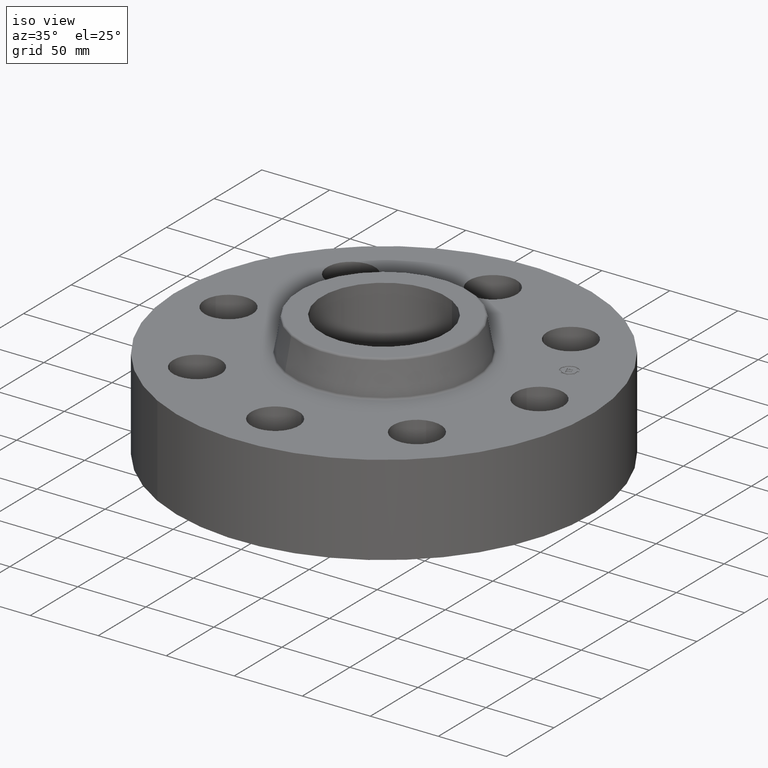
[diagram: clean part render]
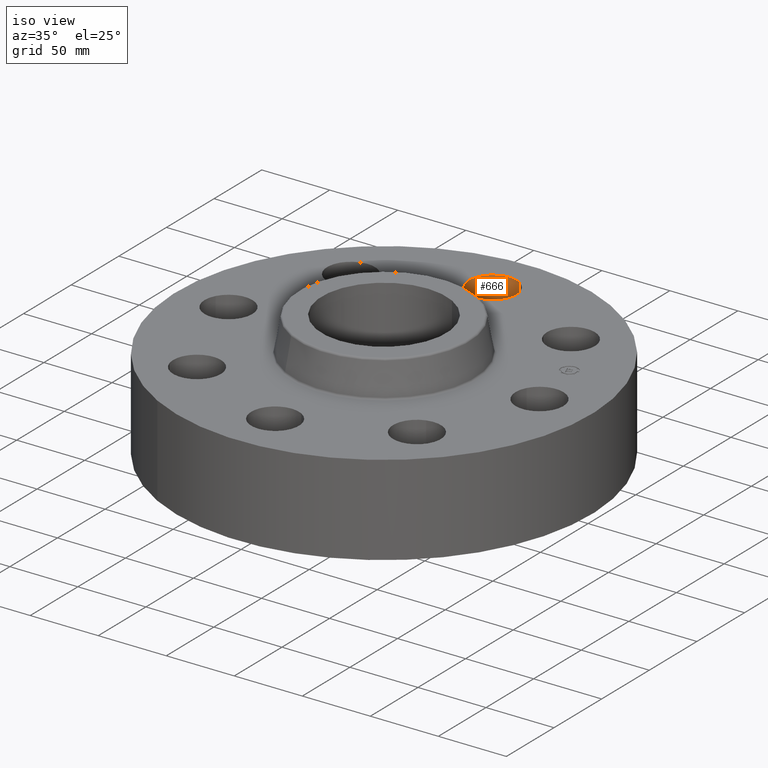
[diagram: same view with one face highlighted and labeled with its STEP entity id]
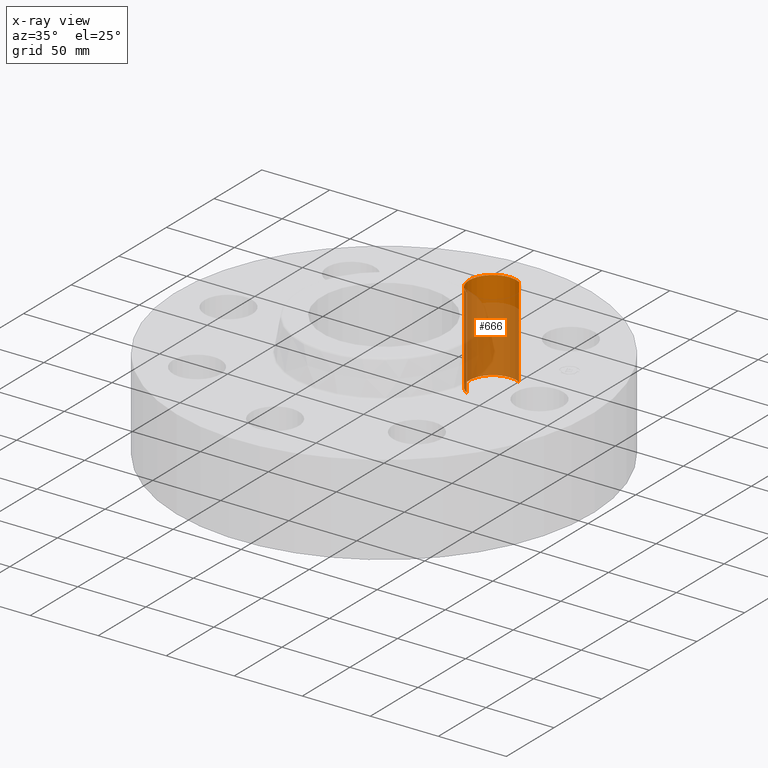
[diagram: x-ray of the same camera — body ghosted, the highlighted face saturated]
A machine part, iso view. The second image highlights one B-rep face of the part: STEP entity #666.
The next image is the same camera in x-ray: the body ghosted, the highlighted face saturated — about 77% of this face is hidden behind the body in this view.
In plain terms, the highlighted cylindrical surface (edge-blend (fillet) strip) has radius 17.526 mm, axis along (0, 0, -1).
Its self-contained STEP definition (entity closure, byte-faithful):
#515=AXIS2_PLACEMENT_3D('Circle Axis2P3D',#513,#514,$) ;
#639=AXIS2_PLACEMENT_3D('Cylinder Axis2P3D',#636,#637,#638) ;
#657=AXIS2_PLACEMENT_3D('Circle Axis2P3D',#655,#656,$) ;
#513=CARTESIAN_POINT('Axis2P3D Location',(-6.2941777774E-016,4.50000000002,0.)) ;
#517=CARTESIAN_POINT('Vertex',(-0.330803621638,3.89446803231,0.)) ;
#519=CARTESIAN_POINT('Vertex',(0.330803621638,5.10553196772,0.)) ;
#636=CARTESIAN_POINT('Axis2P3D Location',(-2.67154120325E-016,4.50000000002,2.61606299214)) ;
#641=CARTESIAN_POINT('Line Origine',(-0.330803621638,3.89446803231,1.31000000001)) ;
#645=CARTESIAN_POINT('Vertex',(-0.330803621638,3.89446803231,2.62000000001)) ;
#648=CARTESIAN_POINT('Line Origine',(0.330803621638,5.10553196772,1.31000000001)) ;
#652=CARTESIAN_POINT('Vertex',(0.330803621638,5.10553196772,2.62000000001)) ;
#655=CARTESIAN_POINT('Axis2P3D Location',(-2.67154120325E-016,4.50000000002,2.62000000001)) ;
#514=DIRECTION('Axis2P3D Direction',(0.,0.,-0.0393700787402)) ;
#637=DIRECTION('Axis2P3D Direction',(0.,0.,-0.0393700787402)) ;
#638=DIRECTION('Axis2P3D XDirection',(0.0188750212049,0.0345504945626,0.)) ;
#642=DIRECTION('Vector Direction',(0.,0.,-0.0393700787402)) ;
#649=DIRECTION('Vector Direction',(0.,0.,-0.0393700787402)) ;
#656=DIRECTION('Axis2P3D Direction',(0.,0.,-0.0393700787402)) ;
#643=VECTOR('Line Direction',#642,0.0393700787402) ;
#650=VECTOR('Line Direction',#649,0.0393700787402) ;
#661=ORIENTED_EDGE('',*,*,#647,.F.) ;
#662=ORIENTED_EDGE('',*,*,#521,.T.) ;
#663=ORIENTED_EDGE('',*,*,#654,.T.) ;
#664=ORIENTED_EDGE('',*,*,#659,.F.) ;
#666=ADVANCED_FACE('PartBody',(#665),#640,.F.) ;
#516=CIRCLE('generated circle',#515,0.690000000003) ;
#658=CIRCLE('generated circle',#657,0.690000000003) ;
#640=CYLINDRICAL_SURFACE('generated cylinder',#639,0.690000000003) ;
#521=EDGE_CURVE('',#518,#520,#516,.T.) ;
#647=EDGE_CURVE('',#518,#646,#644,.F.) ;
#654=EDGE_CURVE('',#520,#653,#651,.F.) ;
#659=EDGE_CURVE('',#646,#653,#658,.T.) ;
#660=EDGE_LOOP('',(#661,#662,#663,#664)) ;
#665=FACE_OUTER_BOUND('',#660,.T.) ;
#644=LINE('Line',#641,#643) ;
#651=LINE('Line',#648,#650) ;
#518=VERTEX_POINT('',#517) ;
#520=VERTEX_POINT('',#519) ;
#646=VERTEX_POINT('',#645) ;
#653=VERTEX_POINT('',#652) ;